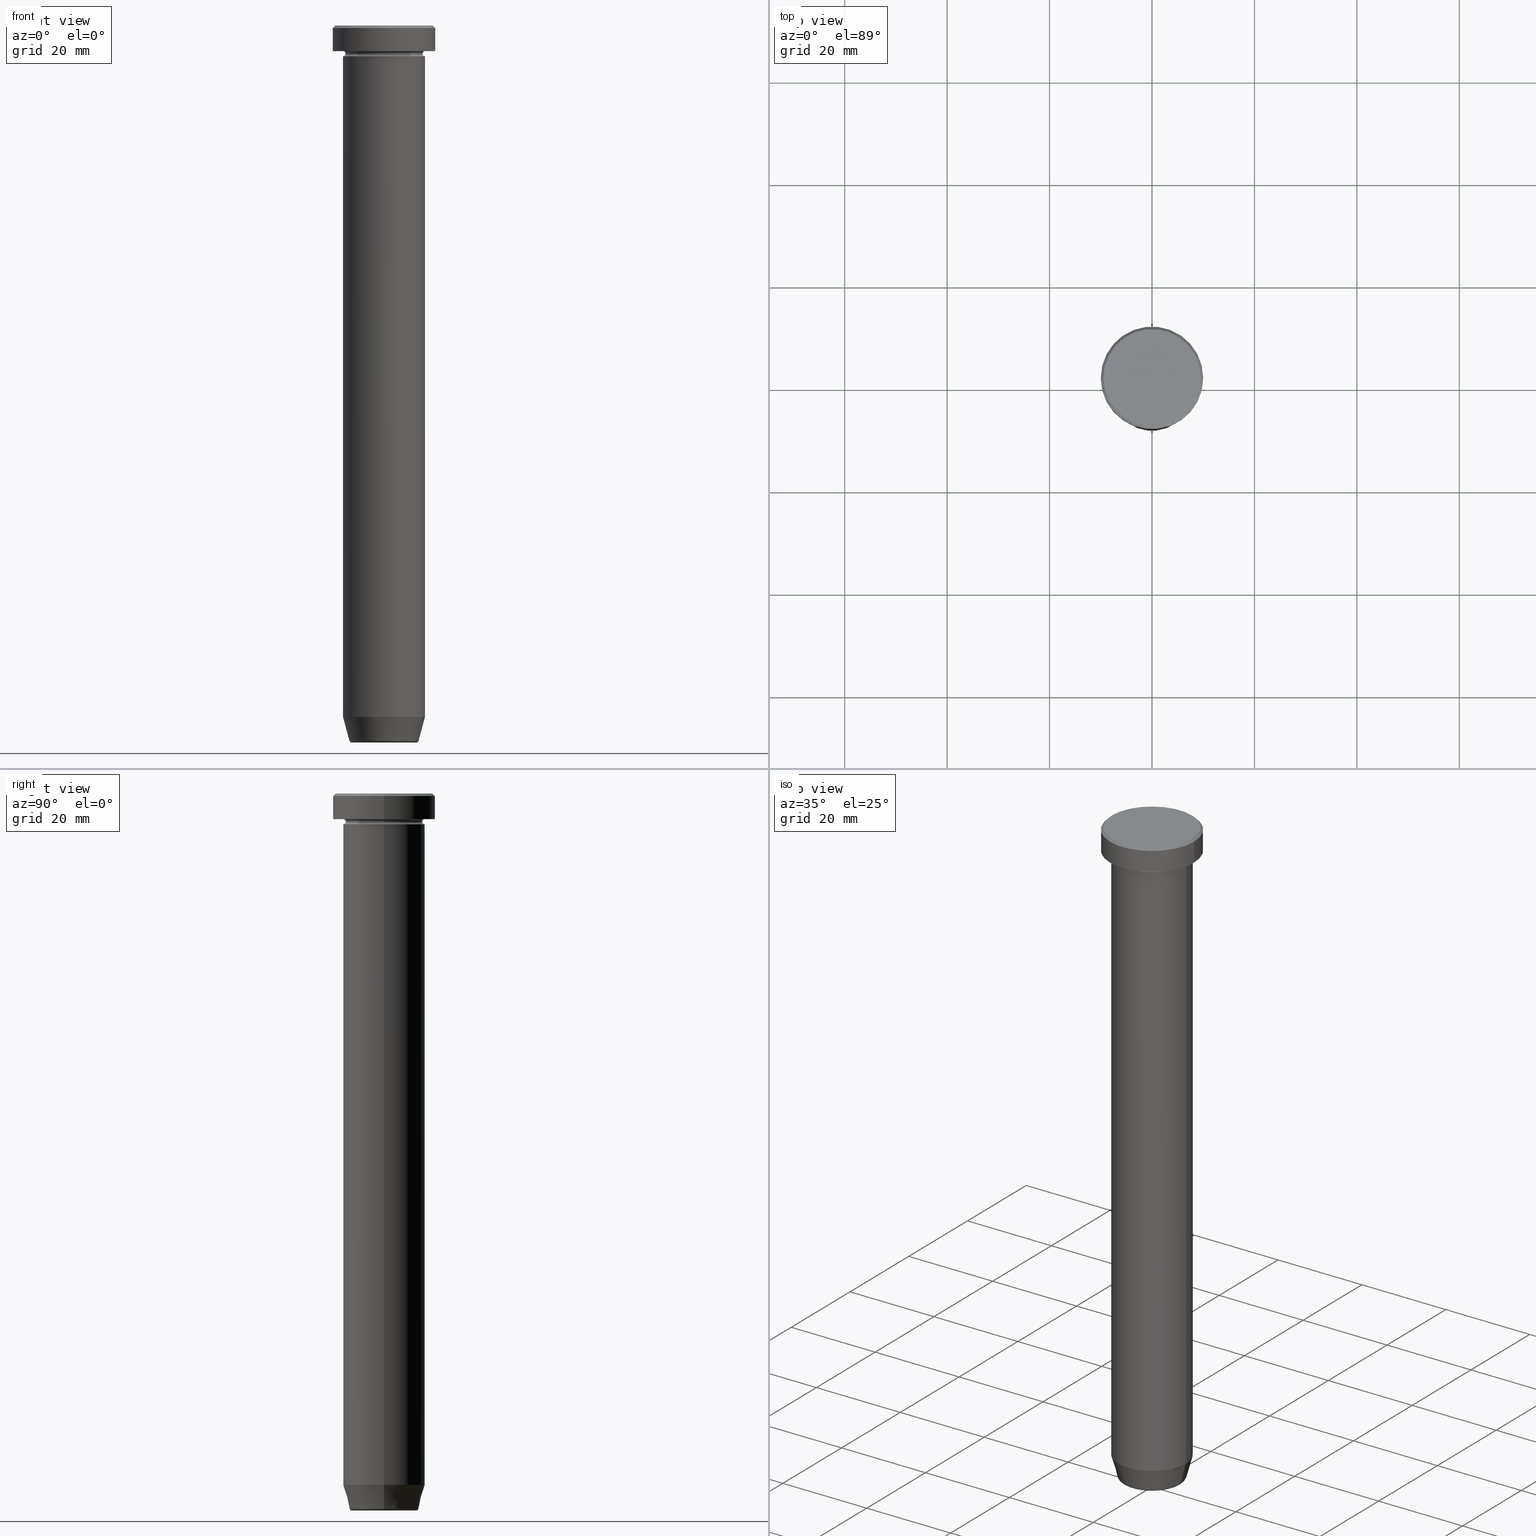
[diagram: canonical four-view strip — front | top / right | iso, engineering-drawing reading convention]
A machine part, canonical four-view strip (front | top / right | iso — engineering-drawing reading convention). The complete STEP part file that produces these views, byte-faithful:
ISO-10303-21;
HEADER;
FILE_DESCRIPTION (( 'STEP AP203' ),
    '1' );
FILE_NAME ('7606.STEP',
    '2024-01-02T22:04:55',
    ( '' ),
    ( '' ),
    'SwSTEP 2.0',
    'SolidWorks 2019',
    '' );
FILE_SCHEMA (( 'CONFIG_CONTROL_DESIGN' ));
ENDSEC;

DATA;
#1 = CARTESIAN_POINT ( 'NONE',  ( 0.000000000000000000, 0.000000000000000000, -27.00000000000000000 ) ) ;
#2 = DIRECTION ( 'NONE',  ( -0.000000000000000000, -0.000000000000000000, 1.000000000000000000 ) ) ;
#3 = ORIENTED_EDGE ( 'NONE', *, *, #526, .F. ) ;
#4 = DIRECTION ( 'NONE',  ( -0.000000000000000000, -1.000000000000000000, -0.000000000000000000 ) ) ;
#5 = EDGE_CURVE ( 'NONE', #432, #118, #187, .T. ) ;
#6 = CARTESIAN_POINT ( 'NONE',  ( 9.500000000000005329, 1.163414459189986274E-15, 0.000000000000000000 ) ) ;
#7 = ORIENTED_EDGE ( 'NONE', *, *, #154, .F. ) ;
#8 = AXIS2_PLACEMENT_3D ( 'NONE', #453, #36, #496 ) ;
#9 = CIRCLE ( 'NONE', #142, 6.759553456999436882 ) ;
#10 = DIRECTION ( 'NONE',  ( 1.000000000000000000, 0.000000000000000000, 0.000000000000000000 ) ) ;
#11 = FACE_OUTER_BOUND ( 'NONE', #412, .T. ) ;
#12 = EDGE_LOOP ( 'NONE', ( #593, #504, #221, #358 ) ) ;
#13 = ADVANCED_FACE ( 'NONE', ( #95 ), #139, .F. ) ;
#14 = VERTEX_POINT ( 'NONE', #264 ) ;
#15 = AXIS2_PLACEMENT_3D ( 'NONE', #235, #4, #237 ) ;
#16 = EDGE_CURVE ( 'NONE', #448, #262, #85, .T. ) ;
#17 = DIRECTION ( 'NONE',  ( 1.000000000000000000, 0.000000000000000000, 0.000000000000000000 ) ) ;
#18 = ADVANCED_FACE ( 'NONE', ( #465 ), #99, .T. ) ;
#19 = CARTESIAN_POINT ( 'NONE',  ( 8.000000000000000000, 0.000000000000000000, -5.500000000000000000 ) ) ;
#20 = EDGE_CURVE ( 'NONE', #432, #466, #195, .T. ) ;
#21 = VECTOR ( 'NONE', #2, 1000.000000000000000 ) ;
#22 = DIRECTION ( 'NONE',  ( -0.000000000000000000, -0.000000000000000000, 1.000000000000000000 ) ) ;
#23 = VECTOR ( 'NONE', #129, 1000.000000000000000 ) ;
#24 = DIRECTION ( 'NONE',  ( 0.000000000000000000, 0.000000000000000000, -1.000000000000000000 ) ) ;
#25 = ORIENTED_EDGE ( 'NONE', *, *, #287, .F. ) ;
#26 = DIRECTION ( 'NONE',  ( 1.000000000000000000, 0.000000000000000000, 0.000000000000000000 ) ) ;
#27 = DIRECTION ( 'NONE',  ( -0.000000000000000000, -0.000000000000000000, 1.000000000000000000 ) ) ;
#28 = ORIENTED_EDGE ( 'NONE', *, *, #29, .F. ) ;
#29 = EDGE_CURVE ( 'NONE', #448, #34, #97, .T. ) ;
#30 = CARTESIAN_POINT ( 'NONE',  ( 0.000000000000000000, 0.000000000000000000, 0.000000000000000000 ) ) ;
#31 = DIRECTION ( 'NONE',  ( -0.000000000000000000, -0.000000000000000000, 1.000000000000000000 ) ) ;
#32 = DIRECTION ( 'NONE',  ( 1.000000000000000000, 0.000000000000000000, 0.000000000000000000 ) ) ;
#33 = DIRECTION ( 'NONE',  ( -0.000000000000000000, -0.000000000000000000, 1.000000000000000000 ) ) ;
#34 = VERTEX_POINT ( 'NONE', #132 ) ;
#35 = AXIS2_PLACEMENT_3D ( 'NONE', #472, #523, #338 ) ;
#36 = DIRECTION ( 'NONE',  ( -0.000000000000000000, -0.000000000000000000, 1.000000000000000000 ) ) ;
#37 = EDGE_CURVE ( 'NONE', #115, #104, #120, .T. ) ;
#38 = COORDINATED_UNIVERSAL_TIME_OFFSET ( 1, 0, .AHEAD. ) ;
#39 = CIRCLE ( 'NONE', #269, 8.000000000000000000 ) ;
#40 = DIRECTION ( 'NONE',  ( -0.000000000000000000, -0.000000000000000000, 1.000000000000000000 ) ) ;
#41 = ORIENTED_EDGE ( 'NONE', *, *, #407, .T. ) ;
#42 = ADVANCED_FACE ( 'NONE', ( #372, #100 ), #272, .T. ) ;
#43 = EDGE_LOOP ( 'NONE', ( #258, #245, #175, #382 ) ) ;
#44 = CARTESIAN_POINT ( 'NONE',  ( 6.276590543854906556, 0.000000000000000000, -140.0000000000000000 ) ) ;
#45 = ADVANCED_FACE ( 'NONE', ( #270 ), #49, .T. ) ;
#46 = CARTESIAN_POINT ( 'NONE',  ( 8.000000000000000000, 0.000000000000000000, -135.0000000000000000 ) ) ;
#47 = DIRECTION ( 'NONE',  ( 0.000000000000000000, 0.000000000000000000, -1.000000000000000000 ) ) ;
#48 = APPROVAL_PERSON_ORGANIZATION ( #435, #93, #568 ) ;
#49 = CYLINDRICAL_SURFACE ( 'NONE', #238, 10.00000000000000000 ) ;
#50 = CARTESIAN_POINT ( 'NONE',  ( 8.000000000000000000, 0.000000000000000000, -27.00000000000000000 ) ) ;
#51 = CARTESIAN_POINT ( 'NONE',  ( 0.000000000000000000, 0.000000000000000000, -5.500000000000000000 ) ) ;
#52 = COORDINATED_UNIVERSAL_TIME_OFFSET ( 1, 0, .AHEAD. ) ;
#53 = FACE_OUTER_BOUND ( 'NONE', #379, .T. ) ;
#54 = ADVANCED_FACE ( 'NONE', ( #230 ), #106, .T. ) ;
#55 = DIRECTION ( 'NONE',  ( -0.000000000000000000, -0.000000000000000000, 1.000000000000000000 ) ) ;
#56 = CARTESIAN_POINT ( 'NONE',  ( -6.276590543854906556, 7.982336011935125286E-16, -140.0000000000000000 ) ) ;
#57 = VERTEX_POINT ( 'NONE', #520 ) ;
#58 = CARTESIAN_POINT ( 'NONE',  ( 0.000000000000000000, 0.000000000000000000, 0.000000000000000000 ) ) ;
#59 = ORIENTED_EDGE ( 'NONE', *, *, #308, .F. ) ;
#60 = LOCAL_TIME ( 23, 4, 55.00000000000000000, #52 ) ;
#61 = EDGE_LOOP ( 'NONE', ( #25, #285 ) ) ;
#62 = DIRECTION ( 'NONE',  ( 1.000000000000000000, 0.000000000000000000, 0.000000000000000000 ) ) ;
#63 = PRODUCT ( '7606', '7606', '', ( #595 ) ) ;
#64 = ORIENTED_EDGE ( 'NONE', *, *, #20, .T. ) ;
#65 = ADVANCED_FACE ( 'NONE', ( #53 ), #479, .T. ) ;
#66 = CC_DESIGN_PERSON_AND_ORGANIZATION_ASSIGNMENT ( #579, #88, ( #301 ) ) ;
#67 = ORIENTED_EDGE ( 'NONE', *, *, #267, .T. ) ;
#68 = CONICAL_SURFACE ( 'NONE', #530, 6.660254037844382857, 0.2617993877991499074 ) ;
#69 = CIRCLE ( 'NONE', #74, 8.000000000000000000 ) ;
#70 = CIRCLE ( 'NONE', #253, 6.276590543854906556 ) ;
#71 = PRODUCT_DEFINITION_SHAPE ( 'NONE', 'NONE',  #357 ) ;
#72 = DATE_TIME_ROLE ( 'creation_date' ) ;
#73 = ORIENTED_EDGE ( 'NONE', *, *, #403, .T. ) ;
#74 = AXIS2_PLACEMENT_3D ( 'NONE', #112, #478, #62 ) ;
#75 = AXIS2_PLACEMENT_3D ( 'NONE', #464, #422, #514 ) ;
#76 = FACE_OUTER_BOUND ( 'NONE', #395, .T. ) ;
#77 = DIRECTION ( 'NONE',  ( 1.000000000000000000, 0.000000000000000000, 0.000000000000000000 ) ) ;
#78 = EDGE_CURVE ( 'NONE', #220, #90, #475, .T. ) ;
#79 = ORIENTED_EDGE ( 'NONE', *, *, #37, .T. ) ;
#80 = DIRECTION ( 'NONE',  ( -0.000000000000000000, -0.000000000000000000, 1.000000000000000000 ) ) ;
#81 = DIRECTION ( 'NONE',  ( -1.000000000000000000, 0.000000000000000000, 0.000000000000000000 ) ) ;
#82 = SECURITY_CLASSIFICATION_LEVEL ( 'unclassified' ) ;
#83 = ORIENTED_EDGE ( 'NONE', *, *, #526, .T. ) ;
#84 = ORIENTED_EDGE ( 'NONE', *, *, #111, .T. ) ;
#85 = CIRCLE ( 'NONE', #128, 9.500000000000005329 ) ;
#86 = CIRCLE ( 'NONE', #8, 8.000000000000000000 ) ;
#87 = CARTESIAN_POINT ( 'NONE',  ( 0.000000000000000000, 0.000000000000000000, 0.000000000000000000 ) ) ;
#88 = PERSON_AND_ORGANIZATION_ROLE ( 'design_supplier' ) ;
#89 = CIRCLE ( 'NONE', #494, 7.500000000000000000 ) ;
#90 = VERTEX_POINT ( 'NONE', #242 ) ;
#91 = ORIENTED_EDGE ( 'NONE', *, *, #529, .T. ) ;
#92 = LINE ( 'NONE', #592, #501 ) ;
#93 = APPROVAL ( #194, 'NEUR�EN�' ) ;
#94 = CARTESIAN_POINT ( 'NONE',  ( 0.000000000000000000, 0.000000000000000000, 0.000000000000000000 ) ) ;
#95 = FACE_OUTER_BOUND ( 'NONE', #135, .T. ) ;
#96 = DIRECTION ( 'NONE',  ( 0.000000000000000000, 0.000000000000000000, -1.000000000000000000 ) ) ;
#97 = LINE ( 'NONE', #212, #351 ) ;
#98 = FACE_OUTER_BOUND ( 'NONE', #286, .T. ) ;
#99 = CONICAL_SURFACE ( 'NONE', #551, 6.660254037844382857, 0.2617993877991499074 ) ;
#100 = FACE_OUTER_BOUND ( 'NONE', #476, .T. ) ;
#101 = EDGE_CURVE ( 'NONE', #262, #90, #236, .T. ) ;
#102 = DIRECTION ( 'NONE',  ( -0.000000000000000000, -0.000000000000000000, 1.000000000000000000 ) ) ;
#103 = CARTESIAN_POINT ( 'NONE',  ( 0.000000000000000000, 0.000000000000000000, -6.000000000000000000 ) ) ;
#104 = VERTEX_POINT ( 'NONE', #562 ) ;
#105 = CC_DESIGN_PERSON_AND_ORGANIZATION_ASSIGNMENT ( #455, #134, ( #179 ) ) ;
#106 = CYLINDRICAL_SURFACE ( 'NONE', #279, 8.000000000000000000 ) ;
#107 = ORIENTED_EDGE ( 'NONE', *, *, #536, .F. ) ;
#108 = EDGE_LOOP ( 'NONE', ( #197, #296, #359, #433 ) ) ;
#109 = ORIENTED_EDGE ( 'NONE', *, *, #231, .T. ) ;
#110 = DIRECTION ( 'NONE',  ( 0.000000000000000000, 0.000000000000000000, -1.000000000000000000 ) ) ;
#111 = EDGE_CURVE ( 'NONE', #251, #344, #169, .T. ) ;
#112 = CARTESIAN_POINT ( 'NONE',  ( 0.000000000000000000, 0.000000000000000000, -27.00000000000000000 ) ) ;
#113 = CARTESIAN_POINT ( 'NONE',  ( 0.000000000000000000, 0.000000000000000000, -5.500000000000000000 ) ) ;
#114 = AXIS2_PLACEMENT_3D ( 'NONE', #113, #370, #282 ) ;
#115 = VERTEX_POINT ( 'NONE', #325 ) ;
#116 = CIRCLE ( 'NONE', #513, 8.000000000000000000 ) ;
#117 = CARTESIAN_POINT ( 'NONE',  ( 0.000000000000000000, 0.000000000000000000, -5.500000000000000000 ) ) ;
#118 = VERTEX_POINT ( 'NONE', #241 ) ;
#119 = DIRECTION ( 'NONE',  ( -0.000000000000000000, -0.000000000000000000, 1.000000000000000000 ) ) ;
#120 = CIRCLE ( 'NONE', #147, 0.5000000000000004441 ) ;
#121 = ADVANCED_FACE ( 'NONE', ( #381 ), #68, .T. ) ;
#122 = AXIS2_PLACEMENT_3D ( 'NONE', #87, #47, #320 ) ;
#123 = CARTESIAN_POINT ( 'NONE',  ( 8.000000000000000000, 0.000000000000000000, -6.000000000000000000 ) ) ;
#124 = APPLICATION_PROTOCOL_DEFINITION ( 'international standard', 'config_control_design', 1994, #266 ) ;
#125 = DIRECTION ( 'NONE',  ( -1.000000000000000000, 0.000000000000000000, -0.000000000000000000 ) ) ;
#126 = PLANE ( 'NONE',  #141 ) ;
#127 = PERSON_AND_ORGANIZATION ( #334, #438 ) ;
#128 = AXIS2_PLACEMENT_3D ( 'NONE', #458, #40, #502 ) ;
#129 = DIRECTION ( 'NONE',  ( -0.000000000000000000, -0.000000000000000000, 1.000000000000000000 ) ) ;
#130 = APPROVAL_DATE_TIME ( #413, #93 ) ;
#131 = CC_DESIGN_PERSON_AND_ORGANIZATION_ASSIGNMENT ( #210, #540, ( #301 ) ) ;
#132 = CARTESIAN_POINT ( 'NONE',  ( -10.00000000000000000, 1.224646799147353256E-15, -0.4999999999999952260 ) ) ;
#133 = EDGE_CURVE ( 'NONE', #436, #115, #456, .T. ) ;
#134 = PERSON_AND_ORGANIZATION_ROLE ( 'classification_officer' ) ;
#135 = EDGE_LOOP ( 'NONE', ( #550, #483, #73, #273 ) ) ;
#136 = CARTESIAN_POINT ( 'NONE',  ( 8.000000000000000000, 0.000000000000000000, -27.00000000000000000 ) ) ;
#137 = PLANE ( 'NONE',  #335 ) ;
#138 = ORIENTED_EDGE ( 'NONE', *, *, #247, .F. ) ;
#139 = TOROIDAL_SURFACE ( 'NONE', #556, 8.000000000000000000, 0.5000000000000000000 ) ;
#140 = DIRECTION ( 'NONE',  ( -1.000000000000000000, 1.224646799147353454E-16, 0.000000000000000000 ) ) ;
#141 = AXIS2_PLACEMENT_3D ( 'NONE', #256, #297, #171 ) ;
#142 = AXIS2_PLACEMENT_3D ( 'NONE', #446, #22, #442 ) ;
#143 = DIRECTION ( 'NONE',  ( 1.000000000000000000, 0.000000000000000000, 0.000000000000000000 ) ) ;
#144 = CARTESIAN_POINT ( 'NONE',  ( 0.000000000000000000, 0.000000000000000000, -140.0000000000000000 ) ) ;
#145 = ADVANCED_FACE ( 'NONE', ( #11 ), #386, .F. ) ;
#146 = CARTESIAN_POINT ( 'NONE',  ( -10.00000000000000000, 1.224646799147353256E-15, -5.000000000000000000 ) ) ;
#147 = AXIS2_PLACEMENT_3D ( 'NONE', #304, #469, #277 ) ;
#148 = VECTOR ( 'NONE', #27, 1000.000000000000000 ) ;
#149 = VERTEX_POINT ( 'NONE', #146 ) ;
#150 = EDGE_LOOP ( 'NONE', ( #7, #440, #109, #84 ) ) ;
#151 = CALENDAR_DATE ( 2024, 2, 1 ) ;
#152 = DIRECTION ( 'NONE',  ( -0.000000000000000000, -0.000000000000000000, 1.000000000000000000 ) ) ;
#153 = ORIENTED_EDGE ( 'NONE', *, *, #78, .T. ) ;
#154 = EDGE_CURVE ( 'NONE', #436, #344, #375, .T. ) ;
#155 = CARTESIAN_POINT ( 'NONE',  ( 0.000000000000000000, 0.000000000000000000, -140.0000000000000000 ) ) ;
#156 = DIRECTION ( 'NONE',  ( 1.000000000000000000, 0.000000000000000000, 0.000000000000000000 ) ) ;
#157 = DIRECTION ( 'NONE',  ( 0.000000000000000000, 0.000000000000000000, -1.000000000000000000 ) ) ;
#158 = DIRECTION ( 'NONE',  ( -0.000000000000000000, -0.000000000000000000, 1.000000000000000000 ) ) ;
#159 = ADVANCED_FACE ( 'NONE', ( #76 ), #590, .T. ) ;
#160 = ORIENTED_EDGE ( 'NONE', *, *, #371, .T. ) ;
#161 = AXIS2_PLACEMENT_3D ( 'NONE', #144, #318, #509 ) ;
#162 = CIRCLE ( 'NONE', #597, 10.00000000000000000 ) ;
#163 = DIRECTION ( 'NONE',  ( 1.224646799147353207E-16, 1.000000000000000000, 0.000000000000000000 ) ) ;
#164 = CARTESIAN_POINT ( 'NONE',  ( 0.000000000000000000, 0.000000000000000000, 0.000000000000000000 ) ) ;
#165 = COORDINATED_UNIVERSAL_TIME_OFFSET ( 1, 0, .AHEAD. ) ;
#166 = EDGE_CURVE ( 'NONE', #149, #34, #361, .T. ) ;
#167 = CARTESIAN_POINT ( 'NONE',  ( -8.000000000000000000, 9.797174393178825657E-16, -6.000000000000000000 ) ) ;
#168 = DIRECTION ( 'NONE',  ( 1.000000000000000000, 0.000000000000000000, 0.000000000000000000 ) ) ;
#169 = CIRCLE ( 'NONE', #365, 8.000000000000000000 ) ;
#170 = TOROIDAL_SURFACE ( 'NONE', #521, 8.000000000000000000, 0.5000000000000000000 ) ;
#171 = DIRECTION ( 'NONE',  ( 1.000000000000000000, 0.000000000000000000, 0.000000000000000000 ) ) ;
#172 = EDGE_LOOP ( 'NONE', ( #553, #564, #41, #186 ) ) ;
#173 = DIRECTION ( 'NONE',  ( 0.000000000000000000, 0.000000000000000000, -1.000000000000000000 ) ) ;
#174 = ORIENTED_EDGE ( 'NONE', *, *, #394, .T. ) ;
#175 = ORIENTED_EDGE ( 'NONE', *, *, #528, .T. ) ;
#176 = FACE_OUTER_BOUND ( 'NONE', #43, .T. ) ;
#177 =( NAMED_UNIT ( * ) SI_UNIT ( $, .STERADIAN. ) SOLID_ANGLE_UNIT ( ) );
#178 = LOCAL_TIME ( 23, 4, 55.00000000000000000, #348 ) ;
#179 = SECURITY_CLASSIFICATION ( '', '', #82 ) ;
#180 = DIRECTION ( 'NONE',  ( 0.000000000000000000, 0.000000000000000000, 1.000000000000000000 ) ) ;
#181 = CARTESIAN_POINT ( 'NONE',  ( -9.500000000000005329, 0.000000000000000000, 0.000000000000000000 ) ) ;
#182 = CARTESIAN_POINT ( 'NONE',  ( 0.000000000000000000, 0.000000000000000000, -139.5000000000000000 ) ) ;
#183 = CARTESIAN_POINT ( 'NONE',  ( 0.000000000000000000, 0.000000000000000000, -140.0000000000000000 ) ) ;
#184 = CC_DESIGN_PERSON_AND_ORGANIZATION_ASSIGNMENT ( #445, #580, ( #63 ) ) ;
#185 = DIRECTION ( 'NONE',  ( -0.000000000000000000, -0.000000000000000000, 1.000000000000000000 ) ) ;
#186 = ORIENTED_EDGE ( 'NONE', *, *, #78, .F. ) ;
#187 = CIRCLE ( 'NONE', #299, 0.5000000000000004441 ) ;
#188 = AXIS2_PLACEMENT_3D ( 'NONE', #505, #492, #451 ) ;
#189 = CIRCLE ( 'NONE', #411, 6.759553456999436882 ) ;
#190 = PERSON_AND_ORGANIZATION ( #334, #438 ) ;
#191 = DIRECTION ( 'NONE',  ( -0.000000000000000000, -0.000000000000000000, 1.000000000000000000 ) ) ;
#192 = ORIENTED_EDGE ( 'NONE', *, *, #594, .T. ) ;
#193 = CARTESIAN_POINT ( 'NONE',  ( 0.000000000000000000, 0.000000000000000000, -5.500000000000000000 ) ) ;
#194 = APPROVAL_STATUS ( 'not_yet_approved' ) ;
#195 = CIRCLE ( 'NONE', #161, 6.276590543854906556 ) ;
#196 = AXIS2_PLACEMENT_3D ( 'NONE', #353, #369, #510 ) ;
#197 = ORIENTED_EDGE ( 'NONE', *, *, #263, .F. ) ;
#198 = DIRECTION ( 'NONE',  ( -0.000000000000000000, -0.000000000000000000, 1.000000000000000000 ) ) ;
#199 = DIRECTION ( 'NONE',  ( -0.000000000000000000, -0.000000000000000000, 1.000000000000000000 ) ) ;
#200 = APPROVAL ( #561, 'NEUR�EN�' ) ;
#201 = LINE ( 'NONE', #291, #23 ) ;
#202 = CARTESIAN_POINT ( 'NONE',  ( 0.000000000000000000, 0.000000000000000000, -5.000000000000000000 ) ) ;
#203 = ORIENTED_EDGE ( 'NONE', *, *, #275, .T. ) ;
#204 = AXIS2_PLACEMENT_3D ( 'NONE', #569, #157, #555 ) ;
#205 = ADVANCED_FACE ( 'NONE', ( #211 ), #137, .T. ) ;
#206 = CARTESIAN_POINT ( 'NONE',  ( 0.000000000000000000, 0.000000000000000000, -5.500000000000000000 ) ) ;
#207 = ORIENTED_EDGE ( 'NONE', *, *, #528, .F. ) ;
#208 = DIRECTION ( 'NONE',  ( -0.000000000000000000, -0.000000000000000000, 1.000000000000000000 ) ) ;
#209 = DIRECTION ( 'NONE',  ( 0.2588190451025211836, 0.000000000000000000, 0.9659258262890680902 ) ) ;
#210 = PERSON_AND_ORGANIZATION ( #334, #438 ) ;
#211 = FACE_OUTER_BOUND ( 'NONE', #271, .T. ) ;
#212 = CARTESIAN_POINT ( 'NONE',  ( -9.500000000000005329, 0.000000000000000000, 0.000000000000000000 ) ) ;
#213 = DIRECTION ( 'NONE',  ( -0.000000000000000000, -0.000000000000000000, 1.000000000000000000 ) ) ;
#214 = LINE ( 'NONE', #545, #346 ) ;
#215 = CALENDAR_DATE ( 2024, 2, 1 ) ;
#216 = AXIS2_PLACEMENT_3D ( 'NONE', #397, #163, #140 ) ;
#217 = ORIENTED_EDGE ( 'NONE', *, *, #443, .T. ) ;
#218 = CIRCLE ( 'NONE', #487, 10.00000000000000000 ) ;
#219 = EDGE_CURVE ( 'NONE', #557, #373, #69, .T. ) ;
#220 = VERTEX_POINT ( 'NONE', #389 ) ;
#221 = ORIENTED_EDGE ( 'NONE', *, *, #29, .T. ) ;
#222 = LINE ( 'NONE', #310, #531 ) ;
#223 = CARTESIAN_POINT ( 'NONE',  ( 0.000000000000000000, 0.000000000000000000, -5.000000000000000000 ) ) ;
#224 = ORIENTED_EDGE ( 'NONE', *, *, #267, .F. ) ;
#225 = ADVANCED_FACE ( 'NONE', ( #343 ), #444, .T. ) ;
#226 = ORIENTED_EDGE ( 'NONE', *, *, #489, .T. ) ;
#227 = AXIS2_PLACEMENT_3D ( 'NONE', #202, #199, #488 ) ;
#228 = CARTESIAN_POINT ( 'NONE',  ( 0.000000000000000000, 0.000000000000000000, -135.0000000000000000 ) ) ;
#229 = VECTOR ( 'NONE', #208, 1000.000000000000000 ) ;
#230 = FACE_OUTER_BOUND ( 'NONE', #586, .T. ) ;
#231 = EDGE_CURVE ( 'NONE', #115, #251, #493, .T. ) ;
#232 = DIRECTION ( 'NONE',  ( 1.000000000000000000, 0.000000000000000000, 0.000000000000000000 ) ) ;
#233 = DIRECTION ( 'NONE',  ( 1.000000000000000000, 0.000000000000000000, 0.000000000000000000 ) ) ;
#234 = ORIENTED_EDGE ( 'NONE', *, *, #489, .F. ) ;
#235 = CARTESIAN_POINT ( 'NONE',  ( -8.000000000000000000, 0.000000000000000000, -5.500000000000000000 ) ) ;
#236 = LINE ( 'NONE', #6, #268 ) ;
#237 = DIRECTION ( 'NONE',  ( 0.000000000000000000, 0.000000000000000000, -1.000000000000000000 ) ) ;
#238 = AXIS2_PLACEMENT_3D ( 'NONE', #425, #430, #156 ) ;
#239 = AXIS2_PLACEMENT_3D ( 'NONE', #206, #402, #404 ) ;
#240 = CIRCLE ( 'NONE', #196, 9.500000000000005329 ) ;
#241 = CARTESIAN_POINT ( 'NONE',  ( 6.759553456999436882, 0.000000000000000000, -139.6294095225512706 ) ) ;
#242 = CARTESIAN_POINT ( 'NONE',  ( 10.00000000000000000, 0.000000000000000000, -0.4999999999999952260 ) ) ;
#243 = EDGE_CURVE ( 'NONE', #497, #104, #398, .T. ) ;
#244 = AXIS2_PLACEMENT_3D ( 'NONE', #350, #417, #461 ) ;
#245 = ORIENTED_EDGE ( 'NONE', *, *, #154, .T. ) ;
#246 = CIRCLE ( 'NONE', #522, 10.00000000000000000 ) ;
#247 = EDGE_CURVE ( 'NONE', #57, #14, #393, .T. ) ;
#248 = CYLINDRICAL_SURFACE ( 'NONE', #399, 10.00000000000000000 ) ;
#249 = DIRECTION ( 'NONE',  ( 0.000000000000000000, 0.000000000000000000, -1.000000000000000000 ) ) ;
#250 = CYLINDRICAL_SURFACE ( 'NONE', #377, 8.000000000000000000 ) ;
#251 = VERTEX_POINT ( 'NONE', #123 ) ;
#252 = CIRCLE ( 'NONE', #75, 10.00000000000000000 ) ;
#253 = AXIS2_PLACEMENT_3D ( 'NONE', #155, #110, #323 ) ;
#254 = LINE ( 'NONE', #401, #229 ) ;
#255 = DIRECTION ( 'NONE',  ( -1.000000000000000000, 0.000000000000000000, 0.000000000000000000 ) ) ;
#256 = CARTESIAN_POINT ( 'NONE',  ( 0.000000000000000000, 1.102182119232618069E-14, -140.0000000000000000 ) ) ;
#257 = DIRECTION ( 'NONE',  ( -0.000000000000000000, -0.000000000000000000, 1.000000000000000000 ) ) ;
#258 = ORIENTED_EDGE ( 'NONE', *, *, #133, .F. ) ;
#259 = CIRCLE ( 'NONE', #290, 8.000000000000000000 ) ;
#260 = FACE_OUTER_BOUND ( 'NONE', #12, .T. ) ;
#261 = APPROVAL_STATUS ( 'not_yet_approved' ) ;
#262 = VERTEX_POINT ( 'NONE', #292 ) ;
#263 = EDGE_CURVE ( 'NONE', #466, #57, #300, .T. ) ;
#264 = CARTESIAN_POINT ( 'NONE',  ( -8.000000000000000000, 9.797174393178825657E-16, -135.0000000000000000 ) ) ;
#265 = DIRECTION ( 'NONE',  ( 1.000000000000000000, 0.000000000000000000, 0.000000000000000000 ) ) ;
#266 = APPLICATION_CONTEXT ( 'configuration controlled 3d designs of mechanical parts and assemblies' ) ;
#267 = EDGE_CURVE ( 'NONE', #274, #547, #558, .T. ) ;
#268 = VECTOR ( 'NONE', #329, 1000.000000000000114 ) ;
#269 = AXIS2_PLACEMENT_3D ( 'NONE', #340, #280, #17 ) ;
#270 = FACE_OUTER_BOUND ( 'NONE', #172, .T. ) ;
#271 = EDGE_LOOP ( 'NONE', ( #314, #160 ) ) ;
#272 = PLANE ( 'NONE',  #35 ) ;
#273 = ORIENTED_EDGE ( 'NONE', *, *, #572, .F. ) ;
#274 = VERTEX_POINT ( 'NONE', #136 ) ;
#275 = EDGE_CURVE ( 'NONE', #557, #344, #222, .T. ) ;
#276 = CARTESIAN_POINT ( 'NONE',  ( -8.000000000000000000, 0.000000000000000000, -4.999999999999999112 ) ) ;
#277 = DIRECTION ( 'NONE',  ( -1.000000000000000000, -1.224646799147353454E-16, 0.000000000000000000 ) ) ;
#278 = ORIENTED_EDGE ( 'NONE', *, *, #247, .T. ) ;
#279 = AXIS2_PLACEMENT_3D ( 'NONE', #58, #152, #10 ) ;
#280 = DIRECTION ( 'NONE',  ( -0.000000000000000000, -0.000000000000000000, 1.000000000000000000 ) ) ;
#281 = CIRCLE ( 'NONE', #585, 8.000000000000000000 ) ;
#282 = DIRECTION ( 'NONE',  ( 1.000000000000000000, 0.000000000000000000, 0.000000000000000000 ) ) ;
#283 = ORIENTED_EDGE ( 'NONE', *, *, #243, .T. ) ;
#284 = DIRECTION ( 'NONE',  ( 1.000000000000000000, 0.000000000000000000, 0.000000000000000000 ) ) ;
#285 = ORIENTED_EDGE ( 'NONE', *, *, #219, .F. ) ;
#286 = EDGE_LOOP ( 'NONE', ( #410, #79, #424, #330 ) ) ;
#287 = EDGE_CURVE ( 'NONE', #373, #557, #86, .T. ) ;
#288 = DIRECTION ( 'NONE',  ( -1.000000000000000000, 0.000000000000000000, 0.000000000000000000 ) ) ;
#289 = CLOSED_SHELL ( 'NONE', ( #65, #121, #563, #145, #54, #18, #356, #486 ) ) ;
#290 = AXIS2_PLACEMENT_3D ( 'NONE', #103, #119, #26 ) ;
#291 = CARTESIAN_POINT ( 'NONE',  ( 8.000000000000000000, 0.000000000000000000, 0.000000000000000000 ) ) ;
#292 = CARTESIAN_POINT ( 'NONE',  ( 9.500000000000005329, 1.194030629168669864E-15, 0.000000000000000000 ) ) ;
#293 = DIRECTION ( 'NONE',  ( 1.000000000000000000, 0.000000000000000000, 0.000000000000000000 ) ) ;
#294 = DIRECTION ( 'NONE',  ( 0.000000000000000000, -1.000000000000000000, 0.000000000000000000 ) ) ;
#295 = CARTESIAN_POINT ( 'NONE',  ( 0.000000000000000000, 0.000000000000000000, 0.000000000000000000 ) ) ;
#296 = ORIENTED_EDGE ( 'NONE', *, *, #20, .F. ) ;
#297 = DIRECTION ( 'NONE',  ( 0.000000000000000000, -0.000000000000000000, 1.000000000000000000 ) ) ;
#298 = DIRECTION ( 'NONE',  ( 0.000000000000000000, -0.000000000000000000, 1.000000000000000000 ) ) ;
#299 = AXIS2_PLACEMENT_3D ( 'NONE', #452, #313, #173 ) ;
#300 = CIRCLE ( 'NONE', #216, 0.4999999999999995559 ) ;
#301 = PRODUCT_DEFINITION_FORMATION_WITH_SPECIFIED_SOURCE ( 'LIBOVOLN�', '', #63, .NOT_KNOWN. ) ;
#302 = DIRECTION ( 'NONE',  ( -0.000000000000000000, -0.000000000000000000, 1.000000000000000000 ) ) ;
#303 = DATE_AND_TIME ( #215, #534 ) ;
#304 = CARTESIAN_POINT ( 'NONE',  ( 8.000000000000000000, 9.797174393178825657E-16, -5.500000000000000000 ) ) ;
#305 = FACE_OUTER_BOUND ( 'NONE', #515, .T. ) ;
#306 = SHAPE_DEFINITION_REPRESENTATION ( #71, #364 ) ;
#307 = CARTESIAN_POINT ( 'NONE',  ( -10.00000000000000000, 1.224646799147353256E-15, 0.000000000000000000 ) ) ;
#308 = EDGE_CURVE ( 'NONE', #441, #274, #92, .T. ) ;
#309 = ORIENTED_EDGE ( 'NONE', *, *, #594, .F. ) ;
#310 = CARTESIAN_POINT ( 'NONE',  ( -8.000000000000000000, 9.797174393178825657E-16, 0.000000000000000000 ) ) ;
#311 = APPROVAL_ROLE ( '' ) ;
#312 = ORIENTED_EDGE ( 'NONE', *, *, #536, .T. ) ;
#313 = DIRECTION ( 'NONE',  ( 0.000000000000000000, -1.000000000000000000, 0.000000000000000000 ) ) ;
#314 = ORIENTED_EDGE ( 'NONE', *, *, #16, .T. ) ;
#315 = APPROVAL_PERSON_ORGANIZATION ( #190, #200, #321 ) ;
#316 = EDGE_CURVE ( 'NONE', #118, #441, #214, .T. ) ;
#317 = ORIENTED_EDGE ( 'NONE', *, *, #443, .F. ) ;
#318 = DIRECTION ( 'NONE',  ( 0.000000000000000000, 0.000000000000000000, -1.000000000000000000 ) ) ;
#319 = ORIENTED_EDGE ( 'NONE', *, *, #316, .T. ) ;
#320 = DIRECTION ( 'NONE',  ( -1.000000000000000000, 0.000000000000000000, 0.000000000000000000 ) ) ;
#321 = APPROVAL_ROLE ( '' ) ;
#322 = CONICAL_SURFACE ( 'NONE', #533, 9.500000000000005329, 0.7853981633974482790 ) ;
#323 = DIRECTION ( 'NONE',  ( 1.000000000000000000, 0.000000000000000000, 0.000000000000000000 ) ) ;
#324 = MANIFOLD_SOLID_BREP ( 'Zaoblit4', #289 ) ;
#325 = CARTESIAN_POINT ( 'NONE',  ( 7.500000000000000000, 0.000000000000000000, -5.500000000000000000 ) ) ;
#326 = ADVANCED_FACE ( 'NONE', ( #176 ), #427, .F. ) ;
#327 = DIRECTION ( 'NONE',  ( 1.000000000000000000, 0.000000000000000000, 0.000000000000000000 ) ) ;
#328 = DATE_AND_TIME ( #151, #60 ) ;
#329 = DIRECTION ( 'NONE',  ( 0.7071067811865474617, 8.659560562354932858E-17, -0.7071067811865474617 ) ) ;
#330 = ORIENTED_EDGE ( 'NONE', *, *, #403, .F. ) ;
#331 = DIRECTION ( 'NONE',  ( 1.000000000000000000, 0.000000000000000000, 0.000000000000000000 ) ) ;
#332 = APPROVAL_DATE_TIME ( #328, #200 ) ;
#333 = ORIENTED_EDGE ( 'NONE', *, *, #508, .F. ) ;
#334 = PERSON ( 'NEUR�EN�', 'NEUR�EN�', 'NEUR�EN�', ('NEUR�EN�'), ('NEUR�EN�'), ('NEUR�EN�') ) ;
#335 = AXIS2_PLACEMENT_3D ( 'NONE', #94, #298, #232 ) ;
#336 = DIRECTION ( 'NONE',  ( -0.2588190451025211836, 3.169619151431770488E-17, 0.9659258262890680902 ) ) ;
#337 = AXIS2_PLACEMENT_3D ( 'NONE', #193, #383, #339 ) ;
#338 = DIRECTION ( 'NONE',  ( -1.000000000000000000, 0.000000000000000000, -0.000000000000000000 ) ) ;
#339 = DIRECTION ( 'NONE',  ( -1.000000000000000000, 0.000000000000000000, 0.000000000000000000 ) ) ;
#340 = CARTESIAN_POINT ( 'NONE',  ( 0.000000000000000000, 0.000000000000000000, -135.0000000000000000 ) ) ;
#341 = PERSON_AND_ORGANIZATION ( #334, #438 ) ;
#342 = ADVANCED_FACE ( 'NONE', ( #305 ), #578, .T. ) ;
#343 = FACE_OUTER_BOUND ( 'NONE', #61, .T. ) ;
#344 = VERTEX_POINT ( 'NONE', #167 ) ;
#345 = CARTESIAN_POINT ( 'NONE',  ( 0.000000000000000000, 8.000000000000000000, -26.99999999999999645 ) ) ;
#346 = VECTOR ( 'NONE', #209, 1000.000000000000114 ) ;
#347 = DESIGN_CONTEXT ( 'detailed design', #266, 'design' ) ;
#348 = COORDINATED_UNIVERSAL_TIME_OFFSET ( 1, 0, .AHEAD. ) ;
#349 = FACE_OUTER_BOUND ( 'NONE', #567, .T. ) ;
#350 = CARTESIAN_POINT ( 'NONE',  ( -8.000000000000000000, 9.797174393178825657E-16, -5.500000000000000000 ) ) ;
#351 = VECTOR ( 'NONE', #543, 1000.000000000000114 ) ;
#352 = DIRECTION ( 'NONE',  ( 0.000000000000000000, 0.000000000000000000, -1.000000000000000000 ) ) ;
#353 = CARTESIAN_POINT ( 'NONE',  ( 0.000000000000000000, 0.000000000000000000, 0.000000000000000000 ) ) ;
#354 = APPROVAL_DATE_TIME ( #495, #539 ) ;
#355 = CARTESIAN_POINT ( 'NONE',  ( 0.000000000000000000, 0.000000000000000000, 0.000000000000000000 ) ) ;
#356 = ADVANCED_FACE ( 'NONE', ( #349 ), #126, .F. ) ;
#357 = PRODUCT_DEFINITION ( 'NEZN�M�', '', #301, #347 ) ;
#358 = ORIENTED_EDGE ( 'NONE', *, *, #423, .F. ) ;
#359 = ORIENTED_EDGE ( 'NONE', *, *, #5, .T. ) ;
#360 = CALENDAR_DATE ( 2024, 2, 1 ) ;
#361 = LINE ( 'NONE', #307, #148 ) ;
#362 = EDGE_LOOP ( 'NONE', ( #367, #226, #153, #460 ) ) ;
#363 = CLOSED_SHELL ( 'NONE', ( #473, #449, #326, #159, #45, #225, #205, #548, #42, #342, #511, #13, #474 ) ) ;
#364 = ADVANCED_BREP_SHAPE_REPRESENTATION ( '7606', ( #535, #324, #366 ), #577 ) ;
#365 = AXIS2_PLACEMENT_3D ( 'NONE', #517, #185, #599 ) ;
#366 = AXIS2_PLACEMENT_3D ( 'NONE', #467, #180, #368 ) ;
#367 = ORIENTED_EDGE ( 'NONE', *, *, #166, .F. ) ;
#368 = DIRECTION ( 'NONE',  ( 1.000000000000000000, 0.000000000000000000, 0.000000000000000000 ) ) ;
#369 = DIRECTION ( 'NONE',  ( -0.000000000000000000, -0.000000000000000000, 1.000000000000000000 ) ) ;
#370 = DIRECTION ( 'NONE',  ( -0.000000000000000000, -0.000000000000000000, 1.000000000000000000 ) ) ;
#371 = EDGE_CURVE ( 'NONE', #262, #448, #240, .T. ) ;
#372 = FACE_BOUND ( 'NONE', #524, .T. ) ;
#373 = VERTEX_POINT ( 'NONE', #50 ) ;
#374 = ORIENTED_EDGE ( 'NONE', *, *, #508, .T. ) ;
#375 = CIRCLE ( 'NONE', #244, 0.5000000000000004441 ) ;
#376 = CARTESIAN_POINT ( 'NONE',  ( 0.000000000000000000, 0.000000000000000000, -0.4999999999999952260 ) ) ;
#377 = AXIS2_PLACEMENT_3D ( 'NONE', #30, #213, #293 ) ;
#378 = CARTESIAN_POINT ( 'NONE',  ( 10.00000000000000000, 0.000000000000000000, 0.000000000000000000 ) ) ;
#379 = EDGE_LOOP ( 'NONE', ( #3, #485, #309, #584 ) ) ;
#380 = DIRECTION ( 'NONE',  ( -0.000000000000000000, -0.000000000000000000, 1.000000000000000000 ) ) ;
#381 = FACE_OUTER_BOUND ( 'NONE', #507, .T. ) ;
#382 = ORIENTED_EDGE ( 'NONE', *, *, #231, .F. ) ;
#383 = DIRECTION ( 'NONE',  ( 0.000000000000000000, 0.000000000000000000, -1.000000000000000000 ) ) ;
#384 = ORIENTED_EDGE ( 'NONE', *, *, #316, .F. ) ;
#385 = EDGE_CURVE ( 'NONE', #220, #149, #252, .T. ) ;
#386 = PLANE ( 'NONE',  #204 ) ;
#387 = CC_DESIGN_DATE_AND_TIME_ASSIGNMENT ( #490, #72, ( #357 ) ) ;
#388 = DIRECTION ( 'NONE',  ( 1.000000000000000000, 0.000000000000000000, 0.000000000000000000 ) ) ;
#389 = CARTESIAN_POINT ( 'NONE',  ( 10.00000000000000000, 0.000000000000000000, -5.000000000000000000 ) ) ;
#390 = AXIS2_PLACEMENT_3D ( 'NONE', #182, #516, #388 ) ;
#391 = EDGE_LOOP ( 'NONE', ( #138, #527, #319, #333 ) ) ;
#392 = DIRECTION ( 'NONE',  ( -0.000000000000000000, -0.000000000000000000, 1.000000000000000000 ) ) ;
#393 = LINE ( 'NONE', #574, #570 ) ;
#394 = EDGE_CURVE ( 'NONE', #547, #274, #281, .T. ) ;
#395 = EDGE_LOOP ( 'NONE', ( #408, #203, #589, #415 ) ) ;
#396 = CARTESIAN_POINT ( 'NONE',  ( -8.000000000000000000, 9.797174393178825657E-16, -27.00000000000000000 ) ) ;
#397 = CARTESIAN_POINT ( 'NONE',  ( -6.276590543854906556, 7.686606519090456901E-16, -139.5000000000000000 ) ) ;
#398 = CIRCLE ( 'NONE', #227, 8.000000000000000000 ) ;
#399 = AXIS2_PLACEMENT_3D ( 'NONE', #581, #302, #77 ) ;
#400 = APPROVAL_PERSON_ORGANIZATION ( #127, #539, #311 ) ;
#401 = CARTESIAN_POINT ( 'NONE',  ( -8.000000000000000000, 9.797174393178825657E-16, 0.000000000000000000 ) ) ;
#402 = DIRECTION ( 'NONE',  ( -0.000000000000000000, -0.000000000000000000, 1.000000000000000000 ) ) ;
#403 = EDGE_CURVE ( 'NONE', #436, #497, #429, .T. ) ;
#404 = DIRECTION ( 'NONE',  ( 1.000000000000000000, 0.000000000000000000, 0.000000000000000000 ) ) ;
#405 = CARTESIAN_POINT ( 'NONE',  ( 0.000000000000000000, 0.000000000000000000, -5.000000000000000000 ) ) ;
#406 = PRODUCT_RELATED_PRODUCT_CATEGORY ( 'detail', '', ( #63 ) ) ;
#407 = EDGE_CURVE ( 'NONE', #34, #90, #246, .T. ) ;
#408 = ORIENTED_EDGE ( 'NONE', *, *, #287, .T. ) ;
#409 = AXIS2_PLACEMENT_3D ( 'NONE', #19, #294, #532 ) ;
#410 = ORIENTED_EDGE ( 'NONE', *, *, #133, .T. ) ;
#411 = AXIS2_PLACEMENT_3D ( 'NONE', #519, #380, #565 ) ;
#412 = EDGE_LOOP ( 'NONE', ( #67, #174 ) ) ;
#413 = DATE_AND_TIME ( #360, #470 ) ;
#414 = ORIENTED_EDGE ( 'NONE', *, *, #385, .F. ) ;
#415 = ORIENTED_EDGE ( 'NONE', *, *, #529, .F. ) ;
#416 = CALENDAR_DATE ( 2024, 2, 1 ) ;
#417 = DIRECTION ( 'NONE',  ( 1.224646799147353207E-16, 1.000000000000000000, 0.000000000000000000 ) ) ;
#418 = CARTESIAN_POINT ( 'NONE',  ( 0.000000000000000000, 0.000000000000000000, -140.0000000000000000 ) ) ;
#419 = AXIS2_PLACEMENT_3D ( 'NONE', #164, #31, #582 ) ;
#420 = DIRECTION ( 'NONE',  ( -0.000000000000000000, -0.000000000000000000, 1.000000000000000000 ) ) ;
#421 = CARTESIAN_POINT ( 'NONE',  ( 0.000000000000000000, 0.000000000000000000, -139.5000000000000000 ) ) ;
#422 = DIRECTION ( 'NONE',  ( -0.000000000000000000, -0.000000000000000000, 1.000000000000000000 ) ) ;
#423 = EDGE_CURVE ( 'NONE', #90, #34, #162, .T. ) ;
#424 = ORIENTED_EDGE ( 'NONE', *, *, #243, .F. ) ;
#425 = CARTESIAN_POINT ( 'NONE',  ( 0.000000000000000000, 0.000000000000000000, 0.000000000000000000 ) ) ;
#426 = ORIENTED_EDGE ( 'NONE', *, *, #275, .F. ) ;
#427 = TOROIDAL_SURFACE ( 'NONE', #239, 8.000000000000000000, 0.5000000000000000000 ) ;
#428 = CARTESIAN_POINT ( 'NONE',  ( 0.000000000000000000, 0.000000000000000000, -0.4999999999999952260 ) ) ;
#429 = CIRCLE ( 'NONE', #15, 0.5000000000000004441 ) ;
#430 = DIRECTION ( 'NONE',  ( -0.000000000000000000, -0.000000000000000000, 1.000000000000000000 ) ) ;
#431 = EDGE_CURVE ( 'NONE', #57, #118, #189, .T. ) ;
#432 = VERTEX_POINT ( 'NONE', #44 ) ;
#433 = ORIENTED_EDGE ( 'NONE', *, *, #431, .F. ) ;
#434 = ORIENTED_EDGE ( 'NONE', *, *, #371, .F. ) ;
#435 = PERSON_AND_ORGANIZATION ( #334, #438 ) ;
#436 = VERTEX_POINT ( 'NONE', #468 ) ;
#437 = AXIS2_PLACEMENT_3D ( 'NONE', #421, #191, #233 ) ;
#438 = ORGANIZATION ( 'NEUR�EN�', 'NEUR�EN�', '' ) ;
#439 = LOCAL_TIME ( 23, 4, 55.00000000000000000, #165 ) ;
#440 = ORIENTED_EDGE ( 'NONE', *, *, #482, .F. ) ;
#441 = VERTEX_POINT ( 'NONE', #46 ) ;
#442 = DIRECTION ( 'NONE',  ( -1.000000000000000000, 0.000000000000000000, 0.000000000000000000 ) ) ;
#443 = EDGE_CURVE ( 'NONE', #441, #14, #116, .T. ) ;
#444 = PLANE ( 'NONE',  #457 ) ;
#445 = PERSON_AND_ORGANIZATION ( #334, #438 ) ;
#446 = CARTESIAN_POINT ( 'NONE',  ( 0.000000000000000000, 0.000000000000000000, -139.6294095225512706 ) ) ;
#447 = CONICAL_SURFACE ( 'NONE', #122, 9.500000000000005329, 0.7853981633974482790 ) ;
#448 = VERTEX_POINT ( 'NONE', #181 ) ;
#449 = ADVANCED_FACE ( 'NONE', ( #98 ), #552, .F. ) ;
#450 = CARTESIAN_POINT ( 'NONE',  ( -8.000000000000000000, 9.797174393178825657E-16, -27.00000000000000000 ) ) ;
#451 = DIRECTION ( 'NONE',  ( 1.000000000000000000, 0.000000000000000000, 0.000000000000000000 ) ) ;
#452 = CARTESIAN_POINT ( 'NONE',  ( 6.276590543854906556, 0.000000000000000000, -139.5000000000000000 ) ) ;
#453 = CARTESIAN_POINT ( 'NONE',  ( 0.000000000000000000, 0.000000000000000000, -27.00000000000000000 ) ) ;
#454 = FACE_OUTER_BOUND ( 'NONE', #108, .T. ) ;
#455 = PERSON_AND_ORGANIZATION ( #334, #438 ) ;
#456 = CIRCLE ( 'NONE', #114, 7.500000000000000000 ) ;
#457 = AXIS2_PLACEMENT_3D ( 'NONE', #345, #249, #125 ) ;
#458 = CARTESIAN_POINT ( 'NONE',  ( 0.000000000000000000, 0.000000000000000000, 0.000000000000000000 ) ) ;
#459 = TOROIDAL_SURFACE ( 'NONE', #390, 6.276590543854906556, 0.5000000000000000000 ) ;
#460 = ORIENTED_EDGE ( 'NONE', *, *, #423, .T. ) ;
#461 = DIRECTION ( 'NONE',  ( -1.000000000000000000, 1.224646799147353454E-16, 0.000000000000000000 ) ) ;
#462 = EDGE_LOOP ( 'NONE', ( #434, #573, #491, #28 ) ) ;
#463 = APPLICATION_PROTOCOL_DEFINITION ( 'international standard', 'config_control_design', 1994, #481 ) ;
#464 = CARTESIAN_POINT ( 'NONE',  ( 0.000000000000000000, 0.000000000000000000, -5.000000000000000000 ) ) ;
#465 = FACE_OUTER_BOUND ( 'NONE', #391, .T. ) ;
#466 = VERTEX_POINT ( 'NONE', #56 ) ;
#467 = CARTESIAN_POINT ( 'NONE',  ( 0.000000000000000000, 0.000000000000000000, 0.000000000000000000 ) ) ;
#468 = CARTESIAN_POINT ( 'NONE',  ( -7.500000000000000000, 9.491012693391985815E-16, -5.500000000000000000 ) ) ;
#469 = DIRECTION ( 'NONE',  ( -1.224646799147353207E-16, 1.000000000000000000, 0.000000000000000000 ) ) ;
#470 = LOCAL_TIME ( 23, 4, 55.00000000000000000, #583 ) ;
#471 =( LENGTH_UNIT ( ) NAMED_UNIT ( * ) SI_UNIT ( .MILLI., .METRE. ) );
#472 = CARTESIAN_POINT ( 'NONE',  ( 0.000000000000000000, 10.00000000000000000, -5.000000000000000000 ) ) ;
#473 = ADVANCED_FACE ( 'NONE', ( #546 ), #322, .T. ) ;
#474 = ADVANCED_FACE ( 'NONE', ( #260 ), #447, .T. ) ;
#475 = LINE ( 'NONE', #378, #21 ) ;
#476 = EDGE_LOOP ( 'NONE', ( #414, #234 ) ) ;
#477 = UNCERTAINTY_MEASURE_WITH_UNIT (LENGTH_MEASURE( 1.000000000000000082E-05 ), #471, 'distance_accuracy_value', 'NONE');
#478 = DIRECTION ( 'NONE',  ( -0.000000000000000000, -0.000000000000000000, 1.000000000000000000 ) ) ;
#479 = TOROIDAL_SURFACE ( 'NONE', #437, 6.276590543854906556, 0.5000000000000000000 ) ;
#480 = CC_DESIGN_APPROVAL ( #200, ( #357 ) ) ;
#481 = APPLICATION_CONTEXT ( 'configuration controlled 3d designs of mechanical parts and assemblies' ) ;
#482 = EDGE_CURVE ( 'NONE', #115, #436, #89, .T. ) ;
#483 = ORIENTED_EDGE ( 'NONE', *, *, #482, .T. ) ;
#484 = PERSON_AND_ORGANIZATION_ROLE ( 'creator' ) ;
#485 = ORIENTED_EDGE ( 'NONE', *, *, #263, .T. ) ;
#486 = ADVANCED_FACE ( 'NONE', ( #454 ), #459, .T. ) ;
#487 = AXIS2_PLACEMENT_3D ( 'NONE', #223, #392, #284 ) ;
#488 = DIRECTION ( 'NONE',  ( -1.000000000000000000, 0.000000000000000000, 0.000000000000000000 ) ) ;
#489 = EDGE_CURVE ( 'NONE', #149, #220, #218, .T. ) ;
#490 = DATE_AND_TIME ( #538, #178 ) ;
#491 = ORIENTED_EDGE ( 'NONE', *, *, #407, .F. ) ;
#492 = DIRECTION ( 'NONE',  ( -0.000000000000000000, -0.000000000000000000, 1.000000000000000000 ) ) ;
#493 = CIRCLE ( 'NONE', #409, 0.5000000000000004441 ) ;
#494 = AXIS2_PLACEMENT_3D ( 'NONE', #51, #257, #506 ) ;
#495 = DATE_AND_TIME ( #416, #439 ) ;
#496 = DIRECTION ( 'NONE',  ( 1.000000000000000000, 0.000000000000000000, 0.000000000000000000 ) ) ;
#497 = VERTEX_POINT ( 'NONE', #276 ) ;
#498 = DIRECTION ( 'NONE',  ( -0.000000000000000000, -0.000000000000000000, 1.000000000000000000 ) ) ;
#499 = DATE_TIME_ROLE ( 'classification_date' ) ;
#500 = DIRECTION ( 'NONE',  ( -0.000000000000000000, -0.000000000000000000, 1.000000000000000000 ) ) ;
#501 = VECTOR ( 'NONE', #80, 1000.000000000000000 ) ;
#502 = DIRECTION ( 'NONE',  ( 1.000000000000000000, 0.000000000000000000, 0.000000000000000000 ) ) ;
#503 = CIRCLE ( 'NONE', #559, 8.000000000000000000 ) ;
#504 = ORIENTED_EDGE ( 'NONE', *, *, #16, .F. ) ;
#505 = CARTESIAN_POINT ( 'NONE',  ( 0.000000000000000000, 0.000000000000000000, -27.00000000000000000 ) ) ;
#506 = DIRECTION ( 'NONE',  ( 1.000000000000000000, 0.000000000000000000, 0.000000000000000000 ) ) ;
#507 = EDGE_LOOP ( 'NONE', ( #192, #278, #317, #384 ) ) ;
#508 = EDGE_CURVE ( 'NONE', #14, #441, #39, .T. ) ;
#509 = DIRECTION ( 'NONE',  ( 1.000000000000000000, 0.000000000000000000, 0.000000000000000000 ) ) ;
#510 = DIRECTION ( 'NONE',  ( 1.000000000000000000, 0.000000000000000000, 0.000000000000000000 ) ) ;
#511 = ADVANCED_FACE ( 'NONE', ( #525 ), #170, .F. ) ;
#512 = CC_DESIGN_PERSON_AND_ORGANIZATION_ASSIGNMENT ( #341, #484, ( #357 ) ) ;
#513 = AXIS2_PLACEMENT_3D ( 'NONE', #228, #420, #598 ) ;
#514 = DIRECTION ( 'NONE',  ( 1.000000000000000000, 0.000000000000000000, 0.000000000000000000 ) ) ;
#515 = EDGE_LOOP ( 'NONE', ( #426, #518, #91, #207 ) ) ;
#516 = DIRECTION ( 'NONE',  ( -0.000000000000000000, -0.000000000000000000, 1.000000000000000000 ) ) ;
#517 = CARTESIAN_POINT ( 'NONE',  ( 0.000000000000000000, 0.000000000000000000, -6.000000000000000000 ) ) ;
#518 = ORIENTED_EDGE ( 'NONE', *, *, #219, .T. ) ;
#519 = CARTESIAN_POINT ( 'NONE',  ( 0.000000000000000000, 0.000000000000000000, -139.6294095225512706 ) ) ;
#520 = CARTESIAN_POINT ( 'NONE',  ( -6.759553456999436882, 9.037619948979306213E-16, -139.6294095225512706 ) ) ;
#521 = AXIS2_PLACEMENT_3D ( 'NONE', #117, #198, #331 ) ;
#522 = AXIS2_PLACEMENT_3D ( 'NONE', #376, #560, #327 ) ;
#523 = DIRECTION ( 'NONE',  ( 0.000000000000000000, 0.000000000000000000, -1.000000000000000000 ) ) ;
#524 = EDGE_LOOP ( 'NONE', ( #283, #571 ) ) ;
#525 = FACE_OUTER_BOUND ( 'NONE', #150, .T. ) ;
#526 = EDGE_CURVE ( 'NONE', #466, #432, #70, .T. ) ;
#527 = ORIENTED_EDGE ( 'NONE', *, *, #431, .T. ) ;
#528 = EDGE_CURVE ( 'NONE', #344, #251, #259, .T. ) ;
#529 = EDGE_CURVE ( 'NONE', #373, #251, #201, .T. ) ;
#530 = AXIS2_PLACEMENT_3D ( 'NONE', #183, #55, #566 ) ;
#531 = VECTOR ( 'NONE', #498, 1000.000000000000000 ) ;
#532 = DIRECTION ( 'NONE',  ( 0.000000000000000000, 0.000000000000000000, -1.000000000000000000 ) ) ;
#533 = AXIS2_PLACEMENT_3D ( 'NONE', #295, #24, #81 ) ;
#534 = LOCAL_TIME ( 23, 4, 55.00000000000000000, #38 ) ;
#535 = MANIFOLD_SOLID_BREP ( 'Zkosen�1', #363 ) ;
#536 = EDGE_CURVE ( 'NONE', #14, #547, #254, .T. ) ;
#537 = FACE_OUTER_BOUND ( 'NONE', #362, .T. ) ;
#538 = CALENDAR_DATE ( 2024, 2, 1 ) ;
#539 = APPROVAL ( #261, 'NEUR�EN�' ) ;
#540 = PERSON_AND_ORGANIZATION_ROLE ( 'creator' ) ;
#541 = CC_DESIGN_APPROVAL ( #93, ( #301 ) ) ;
#542 = CC_DESIGN_APPROVAL ( #539, ( #179 ) ) ;
#543 = DIRECTION ( 'NONE',  ( -0.7071067811865474617, 0.000000000000000000, -0.7071067811865474617 ) ) ;
#544 =( NAMED_UNIT ( * ) PLANE_ANGLE_UNIT ( ) SI_UNIT ( $, .RADIAN. ) );
#545 = CARTESIAN_POINT ( 'NONE',  ( 6.660254037844382857, 0.000000000000000000, -140.0000000000000000 ) ) ;
#546 = FACE_OUTER_BOUND ( 'NONE', #462, .T. ) ;
#547 = VERTEX_POINT ( 'NONE', #396 ) ;
#548 = ADVANCED_FACE ( 'NONE', ( #537 ), #248, .T. ) ;
#549 = ORIENTED_EDGE ( 'NONE', *, *, #308, .T. ) ;
#550 = ORIENTED_EDGE ( 'NONE', *, *, #37, .F. ) ;
#551 = AXIS2_PLACEMENT_3D ( 'NONE', #418, #33, #168 ) ;
#552 = TOROIDAL_SURFACE ( 'NONE', #337, 8.000000000000000000, 0.5000000000000000000 ) ;
#553 = ORIENTED_EDGE ( 'NONE', *, *, #385, .T. ) ;
#554 = CC_DESIGN_DATE_AND_TIME_ASSIGNMENT ( #303, #499, ( #179 ) ) ;
#555 = DIRECTION ( 'NONE',  ( -1.000000000000000000, 0.000000000000000000, -0.000000000000000000 ) ) ;
#556 = AXIS2_PLACEMENT_3D ( 'NONE', #588, #352, #255 ) ;
#557 = VERTEX_POINT ( 'NONE', #450 ) ;
#558 = CIRCLE ( 'NONE', #188, 8.000000000000000000 ) ;
#559 = AXIS2_PLACEMENT_3D ( 'NONE', #405, #158, #288 ) ;
#560 = DIRECTION ( 'NONE',  ( 0.000000000000000000, 0.000000000000000000, -1.000000000000000000 ) ) ;
#561 = APPROVAL_STATUS ( 'not_yet_approved' ) ;
#562 = CARTESIAN_POINT ( 'NONE',  ( 8.000000000000000000, 9.797174393178825657E-16, -4.999999999999999112 ) ) ;
#563 = ADVANCED_FACE ( 'NONE', ( #576 ), #250, .T. ) ;
#564 = ORIENTED_EDGE ( 'NONE', *, *, #166, .T. ) ;
#565 = DIRECTION ( 'NONE',  ( -1.000000000000000000, 0.000000000000000000, 0.000000000000000000 ) ) ;
#566 = DIRECTION ( 'NONE',  ( 1.000000000000000000, 0.000000000000000000, 0.000000000000000000 ) ) ;
#567 = EDGE_LOOP ( 'NONE', ( #64, #83 ) ) ;
#568 = APPROVAL_ROLE ( '' ) ;
#569 = CARTESIAN_POINT ( 'NONE',  ( 0.000000000000000000, -3.469446951953614189E-15, -27.00000000000000000 ) ) ;
#570 = VECTOR ( 'NONE', #336, 1000.000000000000114 ) ;
#571 = ORIENTED_EDGE ( 'NONE', *, *, #572, .T. ) ;
#572 = EDGE_CURVE ( 'NONE', #104, #497, #503, .T. ) ;
#573 = ORIENTED_EDGE ( 'NONE', *, *, #101, .T. ) ;
#574 = CARTESIAN_POINT ( 'NONE',  ( -6.660254037844382857, 8.156458788954358790E-16, -140.0000000000000000 ) ) ;
#575 = EDGE_LOOP ( 'NONE', ( #217, #312, #224, #59 ) ) ;
#576 = FACE_OUTER_BOUND ( 'NONE', #575, .T. ) ;
#577 =( GEOMETRIC_REPRESENTATION_CONTEXT ( 3 ) GLOBAL_UNCERTAINTY_ASSIGNED_CONTEXT ( ( #477 ) ) GLOBAL_UNIT_ASSIGNED_CONTEXT ( ( #471, #544, #177 ) ) REPRESENTATION_CONTEXT ( 'NONE', 'WORKASPACE' ) );
#578 = CYLINDRICAL_SURFACE ( 'NONE', #419, 8.000000000000000000 ) ;
#579 = PERSON_AND_ORGANIZATION ( #334, #438 ) ;
#580 = PERSON_AND_ORGANIZATION_ROLE ( 'design_owner' ) ;
#581 = CARTESIAN_POINT ( 'NONE',  ( 0.000000000000000000, 0.000000000000000000, 0.000000000000000000 ) ) ;
#582 = DIRECTION ( 'NONE',  ( 1.000000000000000000, 0.000000000000000000, 0.000000000000000000 ) ) ;
#583 = COORDINATED_UNIVERSAL_TIME_OFFSET ( 1, 0, .AHEAD. ) ;
#584 = ORIENTED_EDGE ( 'NONE', *, *, #5, .F. ) ;
#585 = AXIS2_PLACEMENT_3D ( 'NONE', #1, #102, #143 ) ;
#586 = EDGE_LOOP ( 'NONE', ( #107, #374, #549, #591 ) ) ;
#587 = CC_DESIGN_SECURITY_CLASSIFICATION ( #179, ( #301 ) ) ;
#588 = CARTESIAN_POINT ( 'NONE',  ( 0.000000000000000000, 0.000000000000000000, -5.500000000000000000 ) ) ;
#589 = ORIENTED_EDGE ( 'NONE', *, *, #111, .F. ) ;
#590 = CYLINDRICAL_SURFACE ( 'NONE', #596, 8.000000000000000000 ) ;
#591 = ORIENTED_EDGE ( 'NONE', *, *, #394, .F. ) ;
#592 = CARTESIAN_POINT ( 'NONE',  ( 8.000000000000000000, 0.000000000000000000, 0.000000000000000000 ) ) ;
#593 = ORIENTED_EDGE ( 'NONE', *, *, #101, .F. ) ;
#594 = EDGE_CURVE ( 'NONE', #118, #57, #9, .T. ) ;
#595 = MECHANICAL_CONTEXT ( 'NONE', #481, 'mechanical' ) ;
#596 = AXIS2_PLACEMENT_3D ( 'NONE', #355, #500, #32 ) ;
#597 = AXIS2_PLACEMENT_3D ( 'NONE', #428, #96, #265 ) ;
#598 = DIRECTION ( 'NONE',  ( 1.000000000000000000, 0.000000000000000000, 0.000000000000000000 ) ) ;
#599 = DIRECTION ( 'NONE',  ( 1.000000000000000000, 0.000000000000000000, 0.000000000000000000 ) ) ;
ENDSEC;
END-ISO-10303-21;
